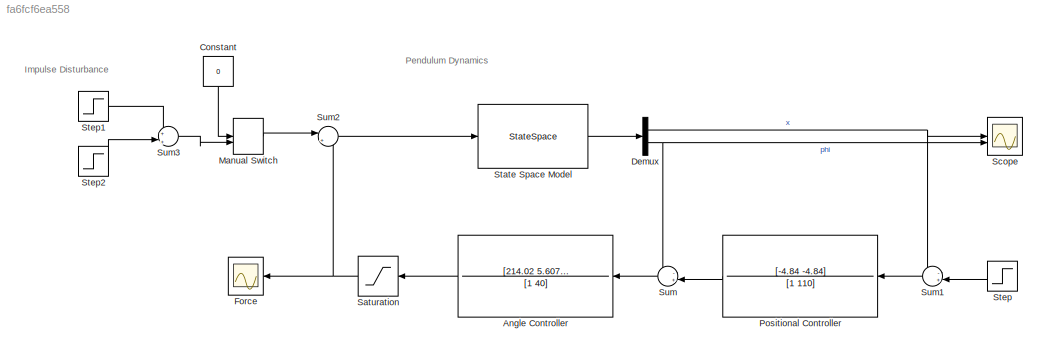
MODEL slx_fa6fcf6ea558
KIND model
CONFIG AbsTol = auto
CONFIG EnableMultiTasking = off
CONFIG FixedStep = auto
CONFIG MaxStep = auto
CONFIG MinStep = auto
CONFIG RelTol = 1e-3
CONFIG SampleTimeConstraint = Unconstrained
CONFIG SolverName = VariableStepAuto
CONFIG StartTime = 0.0
CONFIG StopTime = 30
BLOCK [TransferFcn] Angle Controller
  Denominator = [1 40]
  NameLocation = top
  Numerator = [214.02 5.607*214.02]
BLOCK [Constant] Constant
  NameLocation = left
  Value = 0
BLOCK [Demux] Demux
  Outputs = 2
BLOCK [Scope] Force
  Floating = off
  NameLocation = top
  NumInputPorts = 1
  ScopeSpecificationString = Simulink.scopes.TimeScopeBlockCfg('CurrentConfiguration', extmgr.ConfigurationSet(extmgr.Configuration('Core','General UI',true),extmgr.Configuration('Core','Source UI',true),extmgr.Configuration('Sources','WiredSimulink',true,'DataLoggingVariableName','ScopeData1'),extmgr.Configuration('Visuals','Time Domain',true,'SerializedDisplays',{struct('MinYLimReal','-12.5','MaxYLimReal','12.5','YLabelReal...<+1508ch>
BLOCK [ManualSwitch] Manual Switch
BLOCK [TransferFcn] Positional Controller
  Denominator = [1 110]
  NameLocation = top
  Numerator = [-4.84 -4.84]
BLOCK [Saturate] Saturation
  LowerLimit = -10
  NameLocation = top
  UpperLimit = 10
BLOCK [Scope] Scope
  Floating = off
  NumInputPorts = 2
  ScopeSpecificationString = Simulink.scopes.TimeScopeBlockCfg('CurrentConfiguration', extmgr.ConfigurationSet(extmgr.Configuration('Core','General UI',true),extmgr.Configuration('Core','Source UI',true),extmgr.Configuration('Sources','WiredSimulink',true),extmgr.Configuration('Visuals','Time Domain',true,'SerializedDisplays',{struct('MinYLimReal','-0.39846','MaxYLimReal','1.58512','YLabelReal','','MinYLimMag','0.00000','MaxY...<+1494ch>
BLOCK [StateSpace] State Space Model
  A = A
  B = B
  C = C
  D = D
  InitialCondition = 0
BLOCK [Step] Step
  NameLocation = top
  SampleTime = 0
BLOCK [Step] Step1
  After = 20
  SampleTime = 0
  Time = 4.025
BLOCK [Step] Step2
  After = -20
  SampleTime = 0
  Time = 4.075
BLOCK [Sum] Sum
  Inputs = -+|
  NameLocation = top
BLOCK [Sum] Sum1
  Inputs = -+|
  NameLocation = top
BLOCK [Sum] Sum2
  Inputs = |++
BLOCK [Sum] Sum3
  Inputs = +|+
ANNOTATION (root): Impulse Disturbance
ANNOTATION (root): Pendulum Dynamics
LINE Angle Controller:1 -> Saturation:1
LINE Constant:1 -> Manual Switch:1
NET Demux:1 -> Scope:1, Sum1:1
NET Demux:2 -> Scope:2, Sum:1
LINE Manual Switch:1 -> Sum2:1
LINE Positional Controller:1 -> Sum:2
NET Saturation:1 -> Force:1, Sum2:2
LINE State Space Model:1 -> Demux:1
LINE Step1:1 -> Sum3:1
LINE Step2:1 -> Sum3:2
LINE Step:1 -> Sum1:2
LINE Sum1:1 -> Positional Controller:1
LINE Sum2:1 -> State Space Model:1
LINE Sum3:1 -> Manual Switch:2
LINE Sum:1 -> Angle Controller:1
note: NET lines group one-source signal fan-out (src -> all destinations, sorted); 1:1 wires keep LINE
